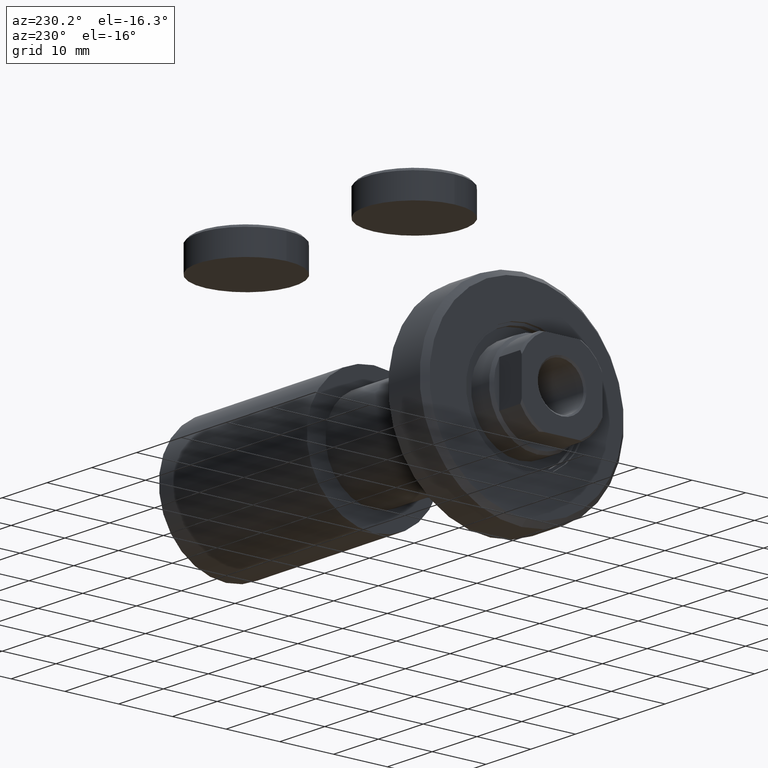
[diagram: clean part render]
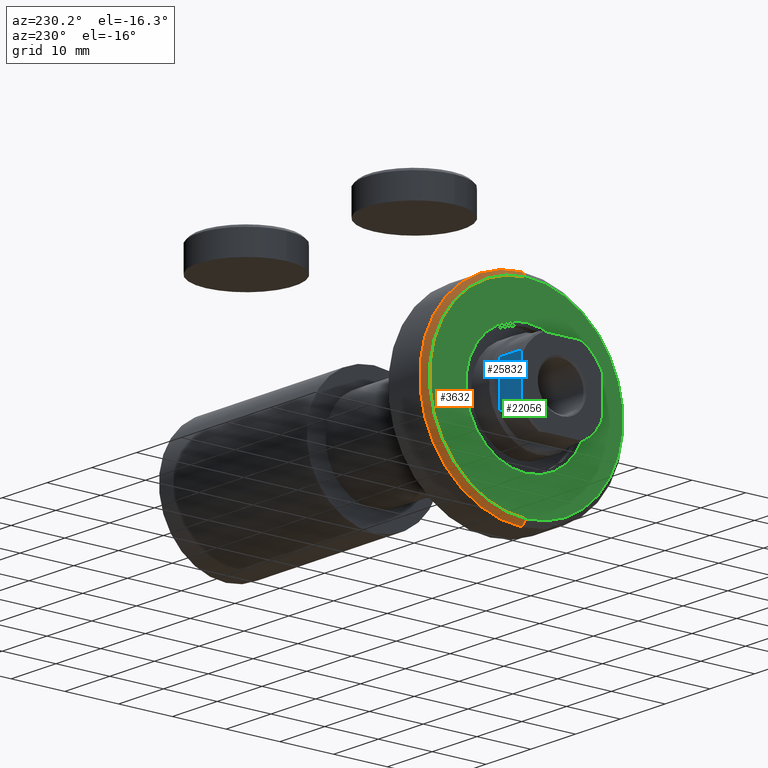
[diagram: same view with three faces highlighted in distinct colors, each labeled with its STEP entity id]
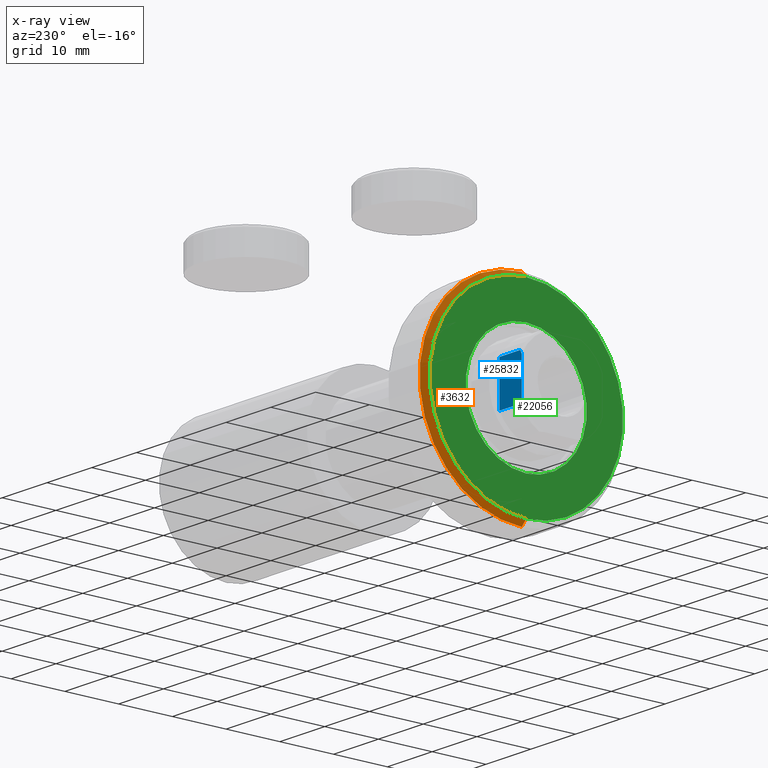
[diagram: x-ray of the same camera — body ghosted, the three highlighted faces saturated]
A machine part, auxiliary view with three faces highlighted in distinct colors.
The next image is the same camera in x-ray (body ghosted, the three faces saturated) — at least one of them is partly hidden behind the body in this view.
Their STEP definitions:

[orange] entity #3632 — the highlighted conical surface has half-angle 45 deg.
#311 = LINE ( 'NONE', #11372, #27364 ) ;
#2581 = CARTESIAN_POINT ( 'NONE',  ( 3.000000000000000000, 0.000000000000000000, 0.000000000000000000 ) ) ;
#3176 = AXIS2_PLACEMENT_3D ( 'NONE', #25808, #36876, #8752 ) ;
#3632 = ADVANCED_FACE ( 'NONE', ( #40795 ), #17168, .T. ) ;
#6993 = CIRCLE ( 'NONE', #10695, 19.00000000000000000 ) ;
#7049 = DIRECTION ( 'NONE',  ( -1.000000000000000000, 0.000000000000000000, 0.000000000000000000 ) ) ;
#8171 = EDGE_CURVE ( 'NONE', #23429, #17560, #6993, .T. ) ;
#8752 = DIRECTION ( 'NONE',  ( 0.000000000000000000, 0.000000000000000000, 1.000000000000000000 ) ) ;
#8794 = CARTESIAN_POINT ( 'NONE',  ( 1.999999999999992228, 0.000000000000000000, 19.00000000000000000 ) ) ;
#9510 = ORIENTED_EDGE ( 'NONE', *, *, #8171, .F. ) ;
#9837 = DIRECTION ( 'NONE',  ( 0.000000000000000000, 0.000000000000000000, -1.000000000000000000 ) ) ;
#10407 = CIRCLE ( 'NONE', #17026, 17.99999999999999645 ) ;
#10695 = AXIS2_PLACEMENT_3D ( 'NONE', #38633, #7049, #9837 ) ;
#11372 = CARTESIAN_POINT ( 'NONE',  ( 3.000000000000000000, 0.000000000000000000, 17.99999999999999645 ) ) ;
#11742 = VERTEX_POINT ( 'NONE', #27344 ) ;
#12308 = CARTESIAN_POINT ( 'NONE',  ( 3.000000000000000000, 2.265596578422603002E-15, -17.99999999999999645 ) ) ;
#12773 = CARTESIAN_POINT ( 'NONE',  ( 3.000000000000000000, 2.204364238465235033E-15, -17.99999999999999645 ) ) ;
#13764 = ORIENTED_EDGE ( 'NONE', *, *, #35342, .F. ) ;
#14145 = DIRECTION ( 'NONE',  ( -0.7071067811865487940, 0.000000000000000000, 0.7071067811865463515 ) ) ;
#16453 = LINE ( 'NONE', #12773, #27425 ) ;
#16658 = DIRECTION ( 'NONE',  ( 1.000000000000000000, -0.000000000000000000, 0.000000000000000000 ) ) ;
#17026 = AXIS2_PLACEMENT_3D ( 'NONE', #2581, #16658, #44989 ) ;
#17168 = CONICAL_SURFACE ( 'NONE', #3176, 17.99999999999999645, 0.7853981633974466137 ) ;
#17560 = VERTEX_POINT ( 'NONE', #8794 ) ;
#18922 = EDGE_LOOP ( 'NONE', ( #13764, #36917, #33444, #9510 ) ) ;
#20366 = DIRECTION ( 'NONE',  ( -0.7071067811865487940, 8.659560562354918067E-17, -0.7071067811865463515 ) ) ;
#23429 = VERTEX_POINT ( 'NONE', #25787 ) ;
#25787 = CARTESIAN_POINT ( 'NONE',  ( 1.999999999999992228, 2.326828918379970970E-15, -19.00000000000000000 ) ) ;
#25808 = CARTESIAN_POINT ( 'NONE',  ( 3.000000000000000000, 0.000000000000000000, 0.000000000000000000 ) ) ;
#27344 = CARTESIAN_POINT ( 'NONE',  ( 3.000000000000000000, 0.000000000000000000, 17.99999999999999645 ) ) ;
#27364 = VECTOR ( 'NONE', #14145, 1000.000000000000000 ) ;
#27425 = VECTOR ( 'NONE', #20366, 1000.000000000000000 ) ;
#28397 = VERTEX_POINT ( 'NONE', #12308 ) ;
#33444 = ORIENTED_EDGE ( 'NONE', *, *, #33518, .T. ) ;
#33518 = EDGE_CURVE ( 'NONE', #11742, #17560, #311, .T. ) ;
#33731 = EDGE_CURVE ( 'NONE', #11742, #28397, #10407, .T. ) ;
#35342 = EDGE_CURVE ( 'NONE', #28397, #23429, #16453, .T. ) ;
#36876 = DIRECTION ( 'NONE',  ( -1.000000000000000000, 0.000000000000000000, 0.000000000000000000 ) ) ;
#36917 = ORIENTED_EDGE ( 'NONE', *, *, #33731, .F. ) ;
#38633 = CARTESIAN_POINT ( 'NONE',  ( 1.999999999999992228, 0.000000000000000000, 0.000000000000000000 ) ) ;
#40795 = FACE_OUTER_BOUND ( 'NONE', #18922, .T. ) ;
#44989 = DIRECTION ( 'NONE',  ( 0.000000000000000000, 0.000000000000000000, -1.000000000000000000 ) ) ;

[blue] entity #25832 — the highlighted planar face has unit normal (-0, -1, -0).
#1902 = CARTESIAN_POINT ( 'NONE',  ( -3.774404943294761061, 7.500000000000000888, 74.80616237962600223 ) ) ;
#2128 = CARTESIAN_POINT ( 'NONE',  ( -3.546278369582399392, 7.500000000000001776, 74.90654544845632756 ) ) ;
#2366 = ORIENTED_EDGE ( 'NONE', *, *, #33575, .T. ) ;
#2766 = ORIENTED_EDGE ( 'NONE', *, *, #15029, .T. ) ;
#3660 = AXIS2_PLACEMENT_3D ( 'NONE', #10458, #20827, #7672 ) ;
#3903 = LINE ( 'NONE', #18202, #15889 ) ;
#4670 = CARTESIAN_POINT ( 'NONE',  ( -7.500000000000001776, 7.500000000000001776, 75.00000000000001421 ) ) ;
#5410 = VERTEX_POINT ( 'NONE', #5860 ) ;
#5620 = ORIENTED_EDGE ( 'NONE', *, *, #34653, .T. ) ;
#5860 = CARTESIAN_POINT ( 'NONE',  ( -3.999999999999997335, 7.500000000000000888, 70.00000000000001421 ) ) ;
#5995 = LINE ( 'NONE', #10144, #24634 ) ;
#6333 = VERTEX_POINT ( 'NONE', #21387 ) ;
#7071 = ORIENTED_EDGE ( 'NONE', *, *, #41443, .F. ) ;
#7462 = EDGE_LOOP ( 'NONE', ( #8783, #5620, #7071, #38078, #2766, #2366 ) ) ;
#7672 = DIRECTION ( 'NONE',  ( 1.000000000000000000, -5.782411586589357392E-17, 0.000000000000000000 ) ) ;
#8385 = LINE ( 'NONE', #12087, #17459 ) ;
#8783 = ORIENTED_EDGE ( 'NONE', *, *, #23168, .F. ) ;
#9109 = B_SPLINE_CURVE_WITH_KNOTS ( 'NONE', 3,
 ( #18920, #15677, #29749, #43819 ),
 .UNSPECIFIED., .F., .F.,
 ( 4, 4 ),
 ( 0.000000000000000000, 0.0007477064084242627260 ),
 .UNSPECIFIED. ) ;
#10144 = CARTESIAN_POINT ( 'NONE',  ( 4.000000000000000000, 7.500000000000000888, -0.001000000000001000089 ) ) ;
#10458 = CARTESIAN_POINT ( 'NONE',  ( -7.500000000000001776, 7.500000000000001776, 75.00000000000001421 ) ) ;
#10921 = FACE_OUTER_BOUND ( 'NONE', #7462, .T. ) ;
#12087 = CARTESIAN_POINT ( 'NONE',  ( -7.500000000000001776, 7.500000000000001776, 70.00000000000000000 ) ) ;
#13154 = DIRECTION ( 'NONE',  ( -0.000000000000000000, -0.000000000000000000, 1.000000000000000000 ) ) ;
#15029 = EDGE_CURVE ( 'NONE', #5410, #21980, #3903, .T. ) ;
#15677 = CARTESIAN_POINT ( 'NONE',  ( 3.546278369582375412, 7.500000000000000888, 74.90654544845624230 ) ) ;
#15889 = VECTOR ( 'NONE', #35503, 1000.000000000000000 ) ;
#17459 = VECTOR ( 'NONE', #29831, 1000.000000000000000 ) ;
#17467 = B_SPLINE_CURVE_WITH_KNOTS ( 'NONE', 3,
 ( #33027, #1902, #2128, #40415 ),
 .UNSPECIFIED., .F., .F.,
 ( 4, 4 ),
 ( 0.000000000000000000, 0.0007477064084242890721 ),
 .UNSPECIFIED. ) ;
#18004 = EDGE_CURVE ( 'NONE', #6333, #5410, #8385, .T. ) ;
#18040 = CARTESIAN_POINT ( 'NONE',  ( 4.000000000000000000, 7.500000000000000888, 74.70000000000001705 ) ) ;
#18202 = CARTESIAN_POINT ( 'NONE',  ( -4.000000000000000000, 7.500000000000000888, -0.001000000000001000089 ) ) ;
#18920 = CARTESIAN_POINT ( 'NONE',  ( 3.315116890850187126, 7.500000000000000888, 75.00000000000001421 ) ) ;
#20827 = DIRECTION ( 'NONE',  ( -5.782411586589357392E-17, -1.000000000000000000, 0.000000000000000000 ) ) ;
#21387 = CARTESIAN_POINT ( 'NONE',  ( 4.000000000000000000, 7.500000000000000888, 70.00000000000001421 ) ) ;
#21980 = VERTEX_POINT ( 'NONE', #41212 ) ;
#23168 = EDGE_CURVE ( 'NONE', #40141, #25109, #36046, .T. ) ;
#24634 = VECTOR ( 'NONE', #13154, 1000.000000000000000 ) ;
#24982 = PLANE ( 'NONE',  #3660 ) ;
#25109 = VERTEX_POINT ( 'NONE', #34550 ) ;
#25832 = ADVANCED_FACE ( 'NONE', ( #10921 ), #24982, .F. ) ;
#26411 = VECTOR ( 'NONE', #43194, 1000.000000000000000 ) ;
#28036 = CARTESIAN_POINT ( 'NONE',  ( 3.315116890850187126, 7.500000000000000888, 75.00000000000001421 ) ) ;
#29749 = CARTESIAN_POINT ( 'NONE',  ( 3.774404943294785486, 7.500000000000000888, 74.80616237962604487 ) ) ;
#29831 = DIRECTION ( 'NONE',  ( -1.000000000000000000, 5.782411586589357392E-17, -0.000000000000000000 ) ) ;
#31627 = VERTEX_POINT ( 'NONE', #18040 ) ;
#33027 = CARTESIAN_POINT ( 'NONE',  ( -4.000000000000000000, 7.500000000000000888, 74.70000000000001705 ) ) ;
#33575 = EDGE_CURVE ( 'NONE', #21980, #25109, #17467, .T. ) ;
#34550 = CARTESIAN_POINT ( 'NONE',  ( -3.315116890850159148, 7.500000000000000888, 75.00000000000001421 ) ) ;
#34653 = EDGE_CURVE ( 'NONE', #40141, #31627, #9109, .T. ) ;
#35503 = DIRECTION ( 'NONE',  ( -0.000000000000000000, -0.000000000000000000, 1.000000000000000000 ) ) ;
#36046 = LINE ( 'NONE', #4670, #26411 ) ;
#38078 = ORIENTED_EDGE ( 'NONE', *, *, #18004, .T. ) ;
#40141 = VERTEX_POINT ( 'NONE', #28036 ) ;
#40415 = CARTESIAN_POINT ( 'NONE',  ( -3.315116890850159148, 7.500000000000000888, 75.00000000000001421 ) ) ;
#41212 = CARTESIAN_POINT ( 'NONE',  ( -4.000000000000000000, 7.500000000000000888, 74.70000000000001705 ) ) ;
#41443 = EDGE_CURVE ( 'NONE', #6333, #31627, #5995, .T. ) ;
#43194 = DIRECTION ( 'NONE',  ( -1.000000000000000000, 5.782411586589357392E-17, -0.000000000000000000 ) ) ;
#43819 = CARTESIAN_POINT ( 'NONE',  ( 4.000000000000000000, 7.500000000000000888, 74.70000000000001705 ) ) ;

[green] entity #22056 — the highlighted planar face has unit normal (-1, 0, 0).
#957 = CARTESIAN_POINT ( 'NONE',  ( 3.000000000000000000, 0.000000000000000000, -11.25000000000000178 ) ) ;
#2581 = CARTESIAN_POINT ( 'NONE',  ( 3.000000000000000000, 0.000000000000000000, 0.000000000000000000 ) ) ;
#4327 = DIRECTION ( 'NONE',  ( 0.000000000000000000, 0.000000000000000000, -1.000000000000000000 ) ) ;
#4663 = DIRECTION ( 'NONE',  ( 0.000000000000000000, 0.000000000000000000, -1.000000000000000000 ) ) ;
#5260 = DIRECTION ( 'NONE',  ( 0.000000000000000000, 0.000000000000000000, -1.000000000000000000 ) ) ;
#8832 = CIRCLE ( 'NONE', #27979, 17.99999999999999645 ) ;
#10407 = CIRCLE ( 'NONE', #17026, 17.99999999999999645 ) ;
#11742 = VERTEX_POINT ( 'NONE', #27344 ) ;
#11869 = DIRECTION ( 'NONE',  ( 1.000000000000000000, 0.000000000000000000, 0.000000000000000000 ) ) ;
#12308 = CARTESIAN_POINT ( 'NONE',  ( 3.000000000000000000, 2.265596578422603002E-15, -17.99999999999999645 ) ) ;
#12437 = CIRCLE ( 'NONE', #21276, 11.25000000000000178 ) ;
#12647 = EDGE_CURVE ( 'NONE', #43198, #29584, #40142, .T. ) ;
#12816 = ORIENTED_EDGE ( 'NONE', *, *, #33731, .T. ) ;
#15404 = ORIENTED_EDGE ( 'NONE', *, *, #22698, .F. ) ;
#16235 = CARTESIAN_POINT ( 'NONE',  ( 3.000000000000000000, 0.000000000000000000, 0.000000000000000000 ) ) ;
#16467 = DIRECTION ( 'NONE',  ( 0.000000000000000000, 0.000000000000000000, -1.000000000000000000 ) ) ;
#16658 = DIRECTION ( 'NONE',  ( 1.000000000000000000, -0.000000000000000000, 0.000000000000000000 ) ) ;
#17026 = AXIS2_PLACEMENT_3D ( 'NONE', #2581, #16658, #44989 ) ;
#18771 = AXIS2_PLACEMENT_3D ( 'NONE', #16235, #11869, #16467 ) ;
#19429 = PLANE ( 'NONE',  #30067 ) ;
#19841 = ORIENTED_EDGE ( 'NONE', *, *, #12647, .F. ) ;
#21276 = AXIS2_PLACEMENT_3D ( 'NONE', #36159, #43073, #4327 ) ;
#22056 = ADVANCED_FACE ( 'NONE', ( #26119, #43637 ), #19429, .T. ) ;
#22698 = EDGE_CURVE ( 'NONE', #29584, #43198, #12437, .T. ) ;
#22793 = DIRECTION ( 'NONE',  ( 1.000000000000000000, -0.000000000000000000, 0.000000000000000000 ) ) ;
#26119 = FACE_OUTER_BOUND ( 'NONE', #28217, .T. ) ;
#26712 = CARTESIAN_POINT ( 'NONE',  ( 3.000000000000000000, 0.000000000000000000, 0.000000000000000000 ) ) ;
#27344 = CARTESIAN_POINT ( 'NONE',  ( 3.000000000000000000, 0.000000000000000000, 17.99999999999999645 ) ) ;
#27979 = AXIS2_PLACEMENT_3D ( 'NONE', #26712, #22793, #5260 ) ;
#28156 = EDGE_LOOP ( 'NONE', ( #15404, #19841 ) ) ;
#28217 = EDGE_LOOP ( 'NONE', ( #12816, #35730 ) ) ;
#28397 = VERTEX_POINT ( 'NONE', #12308 ) ;
#29584 = VERTEX_POINT ( 'NONE', #957 ) ;
#29979 = EDGE_CURVE ( 'NONE', #28397, #11742, #8832, .T. ) ;
#30067 = AXIS2_PLACEMENT_3D ( 'NONE', #36263, #43874, #4663 ) ;
#33731 = EDGE_CURVE ( 'NONE', #11742, #28397, #10407, .T. ) ;
#35334 = CARTESIAN_POINT ( 'NONE',  ( 3.000000000000000000, 1.377727649040772586E-15, 11.25000000000000178 ) ) ;
#35730 = ORIENTED_EDGE ( 'NONE', *, *, #29979, .T. ) ;
#36159 = CARTESIAN_POINT ( 'NONE',  ( 3.000000000000000000, 0.000000000000000000, 0.000000000000000000 ) ) ;
#36263 = CARTESIAN_POINT ( 'NONE',  ( 3.000000000000000000, 0.000000000000000000, 0.000000000000000000 ) ) ;
#40142 = CIRCLE ( 'NONE', #18771, 11.25000000000000178 ) ;
#43073 = DIRECTION ( 'NONE',  ( 1.000000000000000000, 0.000000000000000000, 0.000000000000000000 ) ) ;
#43198 = VERTEX_POINT ( 'NONE', #35334 ) ;
#43637 = FACE_BOUND ( 'NONE', #28156, .T. ) ;
#43874 = DIRECTION ( 'NONE',  ( 1.000000000000000000, -0.000000000000000000, 0.000000000000000000 ) ) ;
#44989 = DIRECTION ( 'NONE',  ( 0.000000000000000000, 0.000000000000000000, -1.000000000000000000 ) ) ;